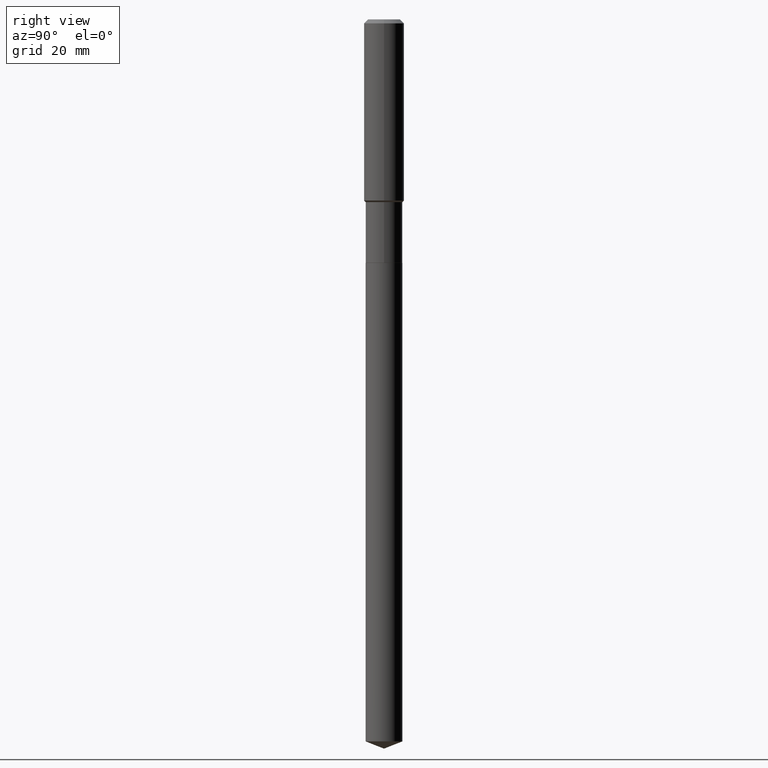
[diagram: clean part render]
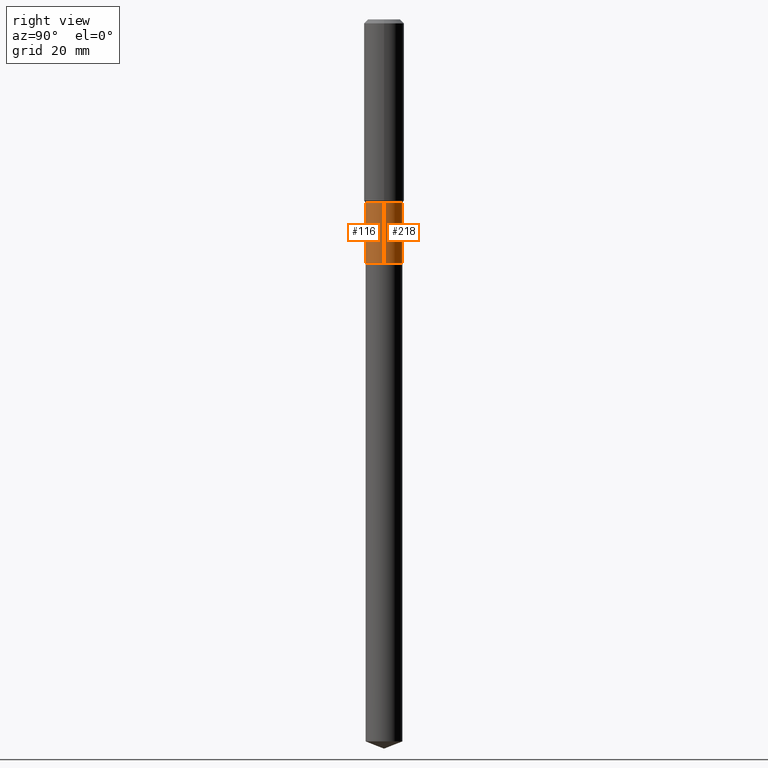
[diagram: same view with one multi-face feature highlighted, each face labeled with its STEP entity id]
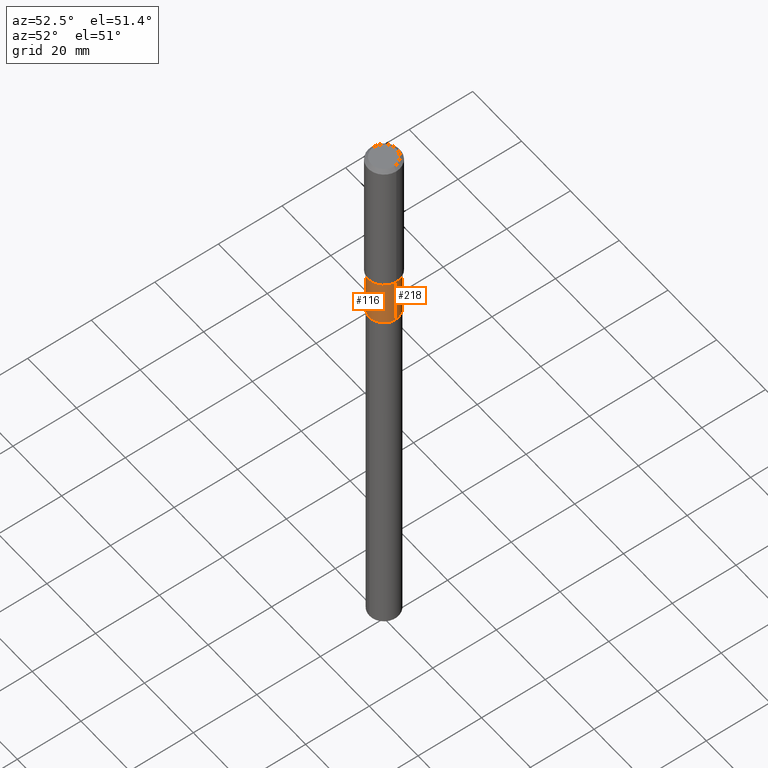
[diagram: same view with one multi-face feature highlighted, each face labeled with its STEP entity id]
A machine part, right view. The highlighted faces form ONE feature: a constant-radius fillet chain: 2 tangent blend faces with common blend radius 4.5999 mm. The faces share edges in the B-rep.
A second angle (auxiliary view) of the same feature is appended — it is thin or edge-on in the first view.
Their STEP definitions:
[1] entity #218 (Cylinder):
#10 = CARTESIAN_POINT ( 'NONE',  ( 0.000000000000000000, 0.000000000000000000, 0.000000000000000000 ) ) ;
#17 = FACE_OUTER_BOUND ( 'NONE', #364, .T. ) ;
#20 = CIRCLE ( 'NONE', #61, 0.1810999999999999555 ) ;
#25 = DIRECTION ( 'NONE',  ( -2.445468806185136877E-29, 3.491481338843145188E-15, 1.000000000000000000 ) ) ;
#26 = ORIENTED_EDGE ( 'NONE', *, *, #431, .F. ) ;
#37 = DIRECTION ( 'NONE',  ( 1.000000000000000000, -6.982962677686268288E-15, 0.000000000000000000 ) ) ;
#53 = AXIS2_PLACEMENT_3D ( 'NONE', #157, #327, #253 ) ;
#61 = AXIS2_PLACEMENT_3D ( 'NONE', #70, #251, #37 ) ;
#65 = CARTESIAN_POINT ( 'NONE',  ( 0.1810999999999999832, -1.264614540928982742E-15, 8.830756140966438813E-30 ) ) ;
#70 = CARTESIAN_POINT ( 'NONE',  ( 4.391328335266648566E-29, -6.269653040160634830E-15, -1.795699999999999630 ) ) ;
#81 = DIRECTION ( 'NONE',  ( -2.445468806185136877E-29, 3.491481338843145188E-15, 1.000000000000000000 ) ) ;
#123 = ORIENTED_EDGE ( 'NONE', *, *, #328, .T. ) ;
#134 = EDGE_CURVE ( 'NONE', #186, #287, #20, .T. ) ;
#150 = EDGE_CURVE ( 'NONE', #362, #287, #450, .T. ) ;
#157 = CARTESIAN_POINT ( 'NONE',  ( 5.851517759439794854E-29, -8.354416547583878800E-15, -2.392799999999999816 ) ) ;
#167 = CARTESIAN_POINT ( 'NONE',  ( 0.1811000000000000110, -9.619031088512861739E-15, -2.392799999999999816 ) ) ;
#186 = VERTEX_POINT ( 'NONE', #374 ) ;
#209 = VECTOR ( 'NONE', #81, 39.37007874015748143 ) ;
#218 = ADVANCED_FACE ( 'NONE', ( #17 ), #301, .T. ) ;
#251 = DIRECTION ( 'NONE',  ( -2.445468806185136597E-29, 3.491481338843145583E-15, 1.000000000000000000 ) ) ;
#253 = DIRECTION ( 'NONE',  ( 1.000000000000000000, -6.982962677686266711E-15, 0.000000000000000000 ) ) ;
#263 = AXIS2_PLACEMENT_3D ( 'NONE', #10, #463, #378 ) ;
#279 = CARTESIAN_POINT ( 'NONE',  ( -0.1810999999999999555, -6.025241899410715104E-15, -1.795699999999999630 ) ) ;
#283 = ORIENTED_EDGE ( 'NONE', *, *, #150, .T. ) ;
#287 = VERTEX_POINT ( 'NONE', #279 ) ;
#291 = ORIENTED_EDGE ( 'NONE', *, *, #134, .F. ) ;
#299 = VECTOR ( 'NONE', #25, 39.37007874015748143 ) ;
#301 = CYLINDRICAL_SURFACE ( 'NONE', #263, 0.1810999999999999832 ) ;
#314 = LINE ( 'NONE', #65, #299 ) ;
#327 = DIRECTION ( 'NONE',  ( -2.445468806185136597E-29, 3.491481338843145583E-15, 1.000000000000000000 ) ) ;
#328 = EDGE_CURVE ( 'NONE', #395, #362, #412, .T. ) ;
#336 = CARTESIAN_POINT ( 'NONE',  ( -0.1810999999999999832, 1.286792894461541317E-15, -8.908191448451633036E-30 ) ) ;
#362 = VERTEX_POINT ( 'NONE', #418 ) ;
#364 = EDGE_LOOP ( 'NONE', ( #123, #283, #291, #26 ) ) ;
#374 = CARTESIAN_POINT ( 'NONE',  ( 0.1810999999999999555, -7.534267581089617769E-15, -1.795699999999999630 ) ) ;
#378 = DIRECTION ( 'NONE',  ( 1.000000000000000000, -6.982962677686266711E-15, 4.876176775795935793E-29 ) ) ;
#395 = VERTEX_POINT ( 'NONE', #167 ) ;
#412 = CIRCLE ( 'NONE', #53, 0.1811000000000000110 ) ;
#418 = CARTESIAN_POINT ( 'NONE',  ( -0.1811000000000000110, -6.025241899410715104E-15, -2.392799999999999816 ) ) ;
#431 = EDGE_CURVE ( 'NONE', #395, #186, #314, .T. ) ;
#450 = LINE ( 'NONE', #336, #209 ) ;
#463 = DIRECTION ( 'NONE',  ( -2.445468806185136597E-29, 3.491481338843145583E-15, 1.000000000000000000 ) ) ;
[2] entity #116 (Cylinder):
#18 = EDGE_CURVE ( 'NONE', #362, #395, #146, .T. ) ;
#25 = DIRECTION ( 'NONE',  ( -2.445468806185136877E-29, 3.491481338843145188E-15, 1.000000000000000000 ) ) ;
#65 = CARTESIAN_POINT ( 'NONE',  ( 0.1810999999999999832, -1.264614540928982742E-15, 8.830756140966438813E-30 ) ) ;
#81 = DIRECTION ( 'NONE',  ( -2.445468806185136877E-29, 3.491481338843145188E-15, 1.000000000000000000 ) ) ;
#85 = CARTESIAN_POINT ( 'NONE',  ( 4.391328335266648566E-29, -6.269653040160634830E-15, -1.795699999999999630 ) ) ;
#103 = ORIENTED_EDGE ( 'NONE', *, *, #18, .T. ) ;
#108 = AXIS2_PLACEMENT_3D ( 'NONE', #85, #231, #257 ) ;
#116 = ADVANCED_FACE ( 'NONE', ( #151 ), #249, .T. ) ;
#146 = CIRCLE ( 'NONE', #201, 0.1811000000000000110 ) ;
#148 = CARTESIAN_POINT ( 'NONE',  ( 0.000000000000000000, 0.000000000000000000, 0.000000000000000000 ) ) ;
#150 = EDGE_CURVE ( 'NONE', #362, #287, #450, .T. ) ;
#151 = FACE_OUTER_BOUND ( 'NONE', #441, .T. ) ;
#167 = CARTESIAN_POINT ( 'NONE',  ( 0.1811000000000000110, -9.619031088512861739E-15, -2.392799999999999816 ) ) ;
#170 = DIRECTION ( 'NONE',  ( 1.000000000000000000, -6.982962677686266711E-15, 4.876176775795935793E-29 ) ) ;
#176 = ORIENTED_EDGE ( 'NONE', *, *, #452, .F. ) ;
#186 = VERTEX_POINT ( 'NONE', #374 ) ;
#192 = AXIS2_PLACEMENT_3D ( 'NONE', #148, #444, #170 ) ;
#201 = AXIS2_PLACEMENT_3D ( 'NONE', #484, #288, #399 ) ;
#209 = VECTOR ( 'NONE', #81, 39.37007874015748143 ) ;
#231 = DIRECTION ( 'NONE',  ( -2.445468806185136597E-29, 3.491481338843145583E-15, 1.000000000000000000 ) ) ;
#249 = CYLINDRICAL_SURFACE ( 'NONE', #192, 0.1810999999999999832 ) ;
#257 = DIRECTION ( 'NONE',  ( 1.000000000000000000, -6.982962677686268288E-15, 0.000000000000000000 ) ) ;
#276 = ORIENTED_EDGE ( 'NONE', *, *, #150, .F. ) ;
#279 = CARTESIAN_POINT ( 'NONE',  ( -0.1810999999999999555, -6.025241899410715104E-15, -1.795699999999999630 ) ) ;
#287 = VERTEX_POINT ( 'NONE', #279 ) ;
#288 = DIRECTION ( 'NONE',  ( -2.445468806185136597E-29, 3.491481338843145583E-15, 1.000000000000000000 ) ) ;
#299 = VECTOR ( 'NONE', #25, 39.37007874015748143 ) ;
#314 = LINE ( 'NONE', #65, #299 ) ;
#336 = CARTESIAN_POINT ( 'NONE',  ( -0.1810999999999999832, 1.286792894461541317E-15, -8.908191448451633036E-30 ) ) ;
#362 = VERTEX_POINT ( 'NONE', #418 ) ;
#374 = CARTESIAN_POINT ( 'NONE',  ( 0.1810999999999999555, -7.534267581089617769E-15, -1.795699999999999630 ) ) ;
#395 = VERTEX_POINT ( 'NONE', #167 ) ;
#399 = DIRECTION ( 'NONE',  ( 1.000000000000000000, -6.982962677686266711E-15, 0.000000000000000000 ) ) ;
#410 = CIRCLE ( 'NONE', #108, 0.1810999999999999555 ) ;
#418 = CARTESIAN_POINT ( 'NONE',  ( -0.1811000000000000110, -6.025241899410715104E-15, -2.392799999999999816 ) ) ;
#431 = EDGE_CURVE ( 'NONE', #395, #186, #314, .T. ) ;
#441 = EDGE_LOOP ( 'NONE', ( #276, #103, #462, #176 ) ) ;
#444 = DIRECTION ( 'NONE',  ( -2.445468806185136597E-29, 3.491481338843145583E-15, 1.000000000000000000 ) ) ;
#450 = LINE ( 'NONE', #336, #209 ) ;
#452 = EDGE_CURVE ( 'NONE', #287, #186, #410, .T. ) ;
#462 = ORIENTED_EDGE ( 'NONE', *, *, #431, .T. ) ;
#484 = CARTESIAN_POINT ( 'NONE',  ( 5.851517759439794854E-29, -8.354416547583878800E-15, -2.392799999999999816 ) ) ;